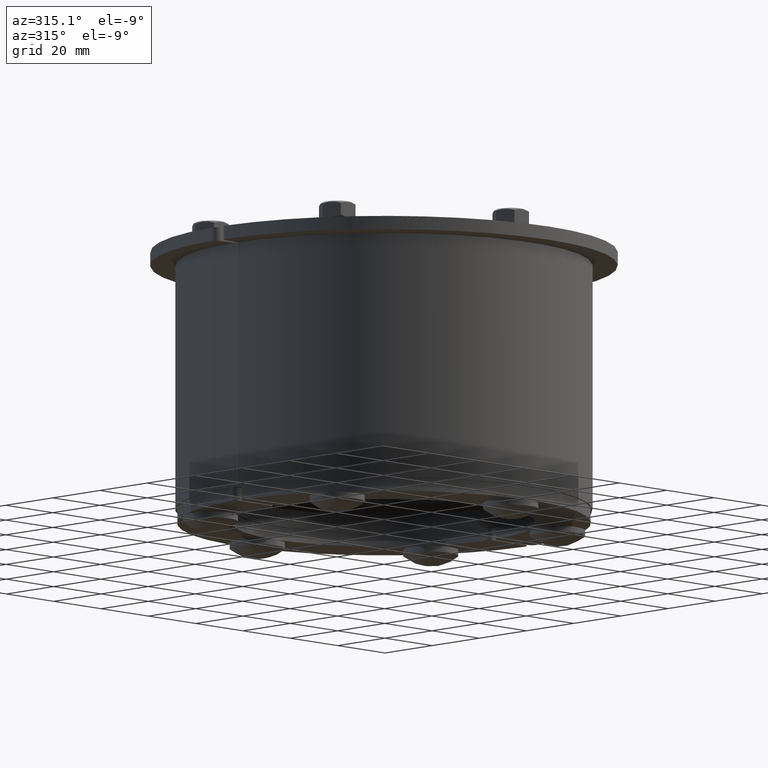
[diagram: clean part render]
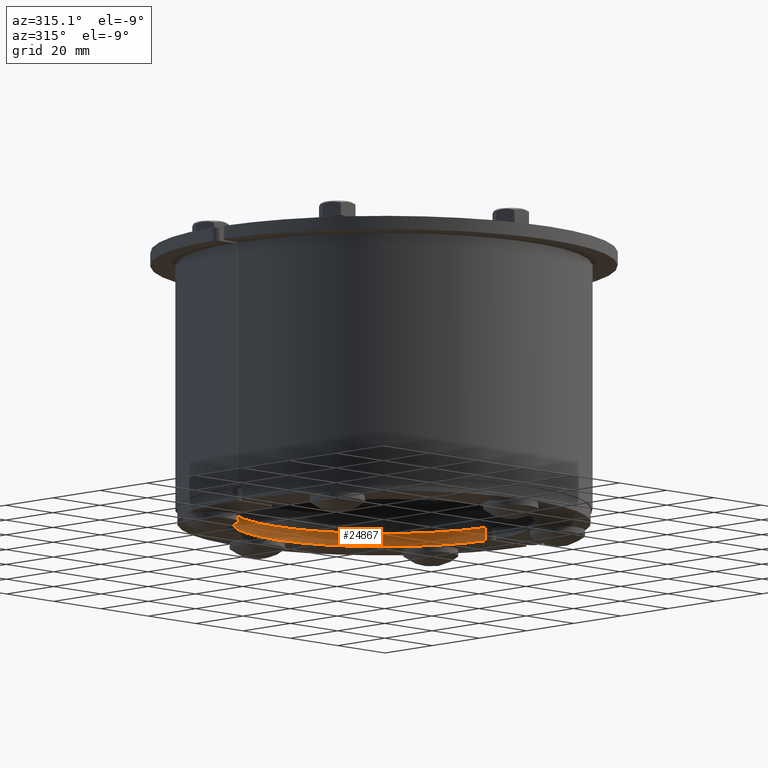
[diagram: same view with one face highlighted and labeled with its STEP entity id]
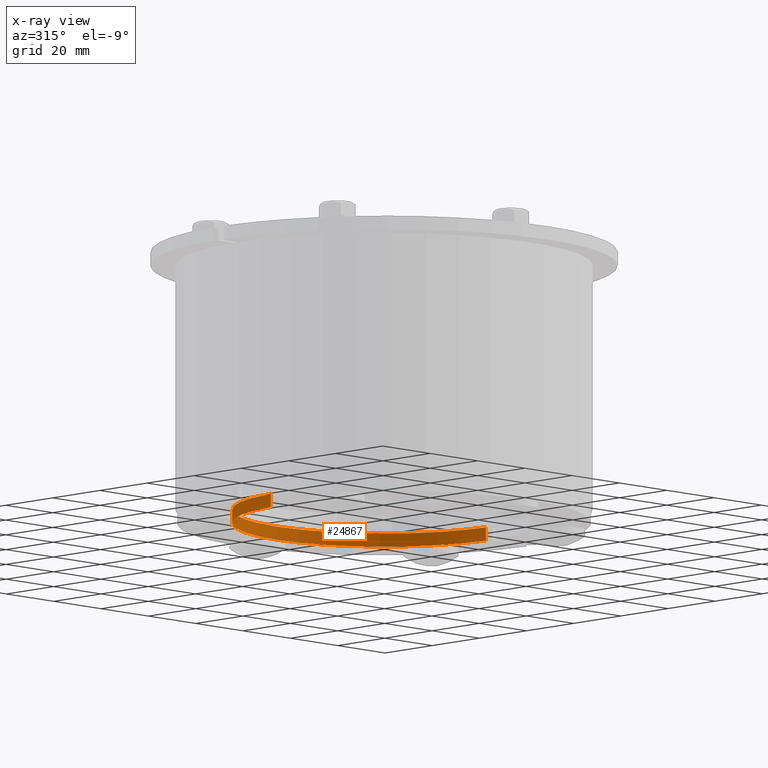
[diagram: x-ray of the same camera — body ghosted, the highlighted face saturated]
A machine part, auxiliary view. The second image highlights one B-rep face of the part: STEP entity #24867.
The next image is the same camera in x-ray: the body ghosted, the highlighted face saturated — about 1% of this face is hidden behind the body in this view.
In plain terms, the highlighted cylindrical surface (partial cylindrical patch) has radius 45.5 mm, axis along (-0, 0, -1).
Its self-contained STEP definition (entity closure, byte-faithful):
#24623=CARTESIAN_POINT('',(-45.436936906629874,2.394736842105269,-4.0));
#24624=VERTEX_POINT('',#24623);
#24632=CARTESIAN_POINT('',(-45.436936906629874,2.394736842105269,0.0));
#24633=VERTEX_POINT('',#24632);
#24634=CARTESIAN_POINT('',(-45.436936906629874,2.39473684210527,-4.0));
#24635=DIRECTION('',(0.0,0.0,1.0));
#24636=VECTOR('',#24635,4.0);
#24637=LINE('',#24634,#24636);
#24638=EDGE_CURVE('',#24624,#24633,#24637,.T.);
#24695=CARTESIAN_POINT('',(45.436936906629874,2.394736842105262,0.0));
#24696=VERTEX_POINT('',#24695);
#24697=CARTESIAN_POINT('',(0.0,0.0,0.0));
#24698=DIRECTION('',(0.0,0.0,1.0));
#24699=DIRECTION('',(0.999939618995809,0.010989010989011,0.0));
#24700=AXIS2_PLACEMENT_3D('',#24697,#24698,#24699);
#24701=CIRCLE('',#24700,45.499999999999993);
#24702=EDGE_CURVE('',#24696,#24633,#24701,.T.);
#24823=CARTESIAN_POINT('',(45.436936906629874,2.394736842105262,-4.0));
#24824=VERTEX_POINT('',#24823);
#24841=CARTESIAN_POINT('',(45.436936906629874,2.394736842105262,0.0));
#24842=DIRECTION('',(0.0,0.0,-1.0));
#24843=VECTOR('',#24842,4.0);
#24844=LINE('',#24841,#24843);
#24845=EDGE_CURVE('',#24696,#24824,#24844,.T.);
#24850=CARTESIAN_POINT('',(0.0,0.0,0.0));
#24851=DIRECTION('',(0.0,0.0,-1.0));
#24852=DIRECTION('',(0.999939618995809,0.010989010989011,0.0));
#24853=AXIS2_PLACEMENT_3D('',#24850,#24851,#24852);
#24854=CYLINDRICAL_SURFACE('',#24853,45.499999999999993);
#24855=ORIENTED_EDGE('',*,*,#24638,.F.);
#24856=CARTESIAN_POINT('',(0.0,0.0,-4.0));
#24857=DIRECTION('',(0.0,0.0,1.0));
#24858=DIRECTION('',(0.999939618995809,0.010989010989011,0.0));
#24859=AXIS2_PLACEMENT_3D('',#24856,#24857,#24858);
#24860=CIRCLE('',#24859,45.499999999999993);
#24861=EDGE_CURVE('',#24824,#24624,#24860,.T.);
#24862=ORIENTED_EDGE('',*,*,#24861,.F.);
#24863=ORIENTED_EDGE('',*,*,#24845,.F.);
#24864=ORIENTED_EDGE('',*,*,#24702,.T.);
#24865=EDGE_LOOP('',(#24855,#24862,#24863,#24864));
#24866=FACE_OUTER_BOUND('',#24865,.T.);
#24867=ADVANCED_FACE('',(#24866),#24854,.F.);